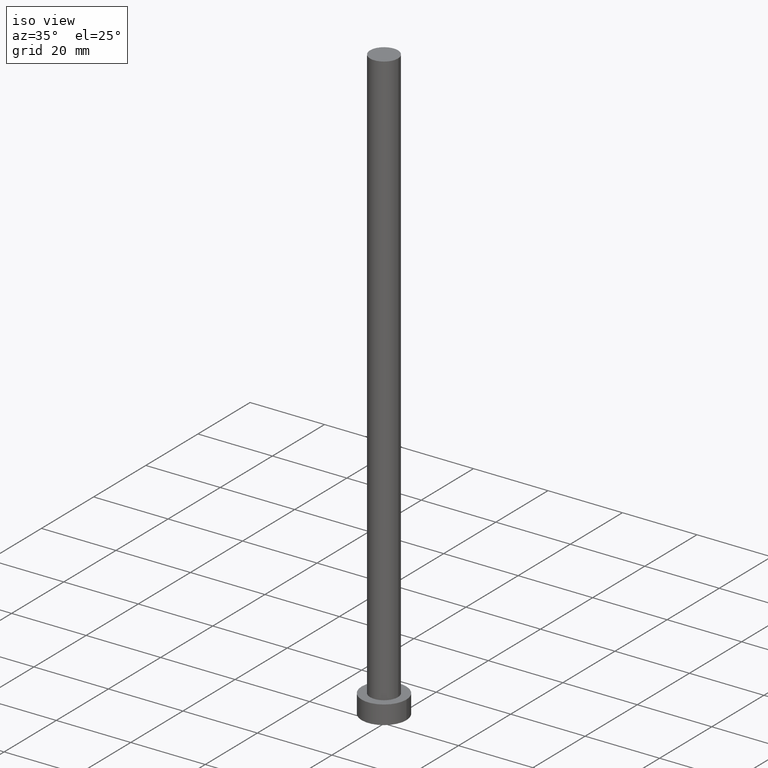
[diagram: clean part render]
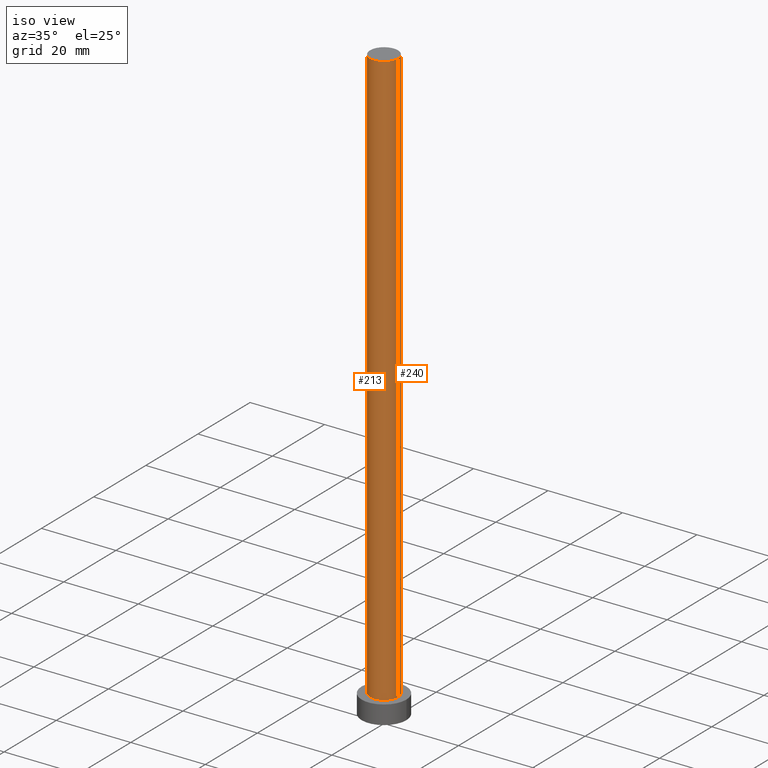
[diagram: same view with one multi-face feature highlighted, each face labeled with its STEP entity id]
A machine part, iso view. The highlighted faces form ONE feature: a constant-radius fillet chain: 2 tangent blend faces with common blend radius 3.75 mm. The faces share edges in the B-rep.
Their STEP definitions:
[1] entity #240 (Cylinder):
#21 = EDGE_CURVE ( 'NONE', #27, #91, #235, .T. ) ;
#24 = DIRECTION ( 'NONE',  ( 0.000000000000000000, 0.000000000000000000, 1.000000000000000000 ) ) ;
#25 = FACE_OUTER_BOUND ( 'NONE', #142, .T. ) ;
#27 = VERTEX_POINT ( 'NONE', #118 ) ;
#35 = AXIS2_PLACEMENT_3D ( 'NONE', #200, #24, #149 ) ;
#37 = CARTESIAN_POINT ( 'NONE',  ( 0.000000000000000000, 0.000000000000000000, 160.0000000000000000 ) ) ;
#40 = CIRCLE ( 'NONE', #35, 3.750000000000000000 ) ;
#49 = EDGE_CURVE ( 'NONE', #162, #91, #216, .T. ) ;
#51 = DIRECTION ( 'NONE',  ( -0.000000000000000000, -0.000000000000000000, -1.000000000000000000 ) ) ;
#54 = DIRECTION ( 'NONE',  ( 1.000000000000000000, 0.000000000000000000, 0.000000000000000000 ) ) ;
#55 = DIRECTION ( 'NONE',  ( -0.000000000000000000, -0.000000000000000000, -1.000000000000000000 ) ) ;
#65 = CARTESIAN_POINT ( 'NONE',  ( 3.750000000000000000, 4.592425496802573972E-16, 160.0000000000000000 ) ) ;
#67 = VECTOR ( 'NONE', #51, 1000.000000000000000 ) ;
#88 = CARTESIAN_POINT ( 'NONE',  ( -3.750000000000000000, 0.000000000000000000, 160.0000000000000000 ) ) ;
#91 = VERTEX_POINT ( 'NONE', #222 ) ;
#95 = ORIENTED_EDGE ( 'NONE', *, *, #49, .T. ) ;
#101 = ORIENTED_EDGE ( 'NONE', *, *, #228, .T. ) ;
#118 = CARTESIAN_POINT ( 'NONE',  ( -3.750000000000000000, 0.000000000000000000, 160.0000000000000000 ) ) ;
#131 = AXIS2_PLACEMENT_3D ( 'NONE', #37, #183, #245 ) ;
#134 = LINE ( 'NONE', #65, #67 ) ;
#137 = DIRECTION ( 'NONE',  ( 0.000000000000000000, 0.000000000000000000, 1.000000000000000000 ) ) ;
#142 = EDGE_LOOP ( 'NONE', ( #207, #101, #95, #184 ) ) ;
#149 = DIRECTION ( 'NONE',  ( 1.000000000000000000, 0.000000000000000000, 0.000000000000000000 ) ) ;
#161 = CYLINDRICAL_SURFACE ( 'NONE', #131, 3.750000000000000000 ) ;
#162 = VERTEX_POINT ( 'NONE', #226 ) ;
#183 = DIRECTION ( 'NONE',  ( -0.000000000000000000, -0.000000000000000000, -1.000000000000000000 ) ) ;
#184 = ORIENTED_EDGE ( 'NONE', *, *, #21, .F. ) ;
#185 = VECTOR ( 'NONE', #55, 1000.000000000000000 ) ;
#188 = CARTESIAN_POINT ( 'NONE',  ( 3.750000000000000000, 4.592425496802573972E-16, 160.0000000000000000 ) ) ;
#195 = EDGE_CURVE ( 'NONE', #220, #27, #40, .T. ) ;
#200 = CARTESIAN_POINT ( 'NONE',  ( 0.000000000000000000, 0.000000000000000000, 160.0000000000000000 ) ) ;
#207 = ORIENTED_EDGE ( 'NONE', *, *, #195, .F. ) ;
#216 = CIRCLE ( 'NONE', #244, 3.750000000000000000 ) ;
#220 = VERTEX_POINT ( 'NONE', #188 ) ;
#222 = CARTESIAN_POINT ( 'NONE',  ( -3.750000000000000000, 0.000000000000000000, 5.000000000000000000 ) ) ;
#226 = CARTESIAN_POINT ( 'NONE',  ( 3.750000000000000000, 4.592425496802573972E-16, 5.000000000000000000 ) ) ;
#228 = EDGE_CURVE ( 'NONE', #220, #162, #134, .T. ) ;
#235 = LINE ( 'NONE', #88, #185 ) ;
#238 = CARTESIAN_POINT ( 'NONE',  ( 0.000000000000000000, 0.000000000000000000, 5.000000000000000000 ) ) ;
#240 = ADVANCED_FACE ( 'NONE', ( #25 ), #161, .T. ) ;
#244 = AXIS2_PLACEMENT_3D ( 'NONE', #238, #137, #54 ) ;
#245 = DIRECTION ( 'NONE',  ( -1.000000000000000000, 0.000000000000000000, 0.000000000000000000 ) ) ;
[2] entity #213 (Cylinder):
#13 = CARTESIAN_POINT ( 'NONE',  ( 0.000000000000000000, 0.000000000000000000, 5.000000000000000000 ) ) ;
#21 = EDGE_CURVE ( 'NONE', #27, #91, #235, .T. ) ;
#27 = VERTEX_POINT ( 'NONE', #118 ) ;
#31 = DIRECTION ( 'NONE',  ( -1.000000000000000000, 0.000000000000000000, 0.000000000000000000 ) ) ;
#47 = CYLINDRICAL_SURFACE ( 'NONE', #150, 3.750000000000000000 ) ;
#48 = AXIS2_PLACEMENT_3D ( 'NONE', #13, #68, #156 ) ;
#51 = DIRECTION ( 'NONE',  ( -0.000000000000000000, -0.000000000000000000, -1.000000000000000000 ) ) ;
#55 = DIRECTION ( 'NONE',  ( -0.000000000000000000, -0.000000000000000000, -1.000000000000000000 ) ) ;
#59 = CIRCLE ( 'NONE', #139, 3.750000000000000000 ) ;
#61 = FACE_OUTER_BOUND ( 'NONE', #105, .T. ) ;
#63 = EDGE_CURVE ( 'NONE', #91, #162, #202, .T. ) ;
#65 = CARTESIAN_POINT ( 'NONE',  ( 3.750000000000000000, 4.592425496802573972E-16, 160.0000000000000000 ) ) ;
#67 = VECTOR ( 'NONE', #51, 1000.000000000000000 ) ;
#68 = DIRECTION ( 'NONE',  ( 0.000000000000000000, 0.000000000000000000, 1.000000000000000000 ) ) ;
#75 = ORIENTED_EDGE ( 'NONE', *, *, #253, .F. ) ;
#88 = CARTESIAN_POINT ( 'NONE',  ( -3.750000000000000000, 0.000000000000000000, 160.0000000000000000 ) ) ;
#91 = VERTEX_POINT ( 'NONE', #222 ) ;
#105 = EDGE_LOOP ( 'NONE', ( #128, #75, #243, #218 ) ) ;
#118 = CARTESIAN_POINT ( 'NONE',  ( -3.750000000000000000, 0.000000000000000000, 160.0000000000000000 ) ) ;
#128 = ORIENTED_EDGE ( 'NONE', *, *, #228, .F. ) ;
#134 = LINE ( 'NONE', #65, #67 ) ;
#139 = AXIS2_PLACEMENT_3D ( 'NONE', #246, #180, #172 ) ;
#150 = AXIS2_PLACEMENT_3D ( 'NONE', #189, #251, #31 ) ;
#156 = DIRECTION ( 'NONE',  ( 1.000000000000000000, 0.000000000000000000, 0.000000000000000000 ) ) ;
#162 = VERTEX_POINT ( 'NONE', #226 ) ;
#172 = DIRECTION ( 'NONE',  ( 1.000000000000000000, 0.000000000000000000, 0.000000000000000000 ) ) ;
#180 = DIRECTION ( 'NONE',  ( 0.000000000000000000, 0.000000000000000000, 1.000000000000000000 ) ) ;
#185 = VECTOR ( 'NONE', #55, 1000.000000000000000 ) ;
#188 = CARTESIAN_POINT ( 'NONE',  ( 3.750000000000000000, 4.592425496802573972E-16, 160.0000000000000000 ) ) ;
#189 = CARTESIAN_POINT ( 'NONE',  ( 0.000000000000000000, 0.000000000000000000, 160.0000000000000000 ) ) ;
#202 = CIRCLE ( 'NONE', #48, 3.750000000000000000 ) ;
#213 = ADVANCED_FACE ( 'NONE', ( #61 ), #47, .T. ) ;
#218 = ORIENTED_EDGE ( 'NONE', *, *, #63, .T. ) ;
#220 = VERTEX_POINT ( 'NONE', #188 ) ;
#222 = CARTESIAN_POINT ( 'NONE',  ( -3.750000000000000000, 0.000000000000000000, 5.000000000000000000 ) ) ;
#226 = CARTESIAN_POINT ( 'NONE',  ( 3.750000000000000000, 4.592425496802573972E-16, 5.000000000000000000 ) ) ;
#228 = EDGE_CURVE ( 'NONE', #220, #162, #134, .T. ) ;
#235 = LINE ( 'NONE', #88, #185 ) ;
#243 = ORIENTED_EDGE ( 'NONE', *, *, #21, .T. ) ;
#246 = CARTESIAN_POINT ( 'NONE',  ( 0.000000000000000000, 0.000000000000000000, 160.0000000000000000 ) ) ;
#251 = DIRECTION ( 'NONE',  ( -0.000000000000000000, -0.000000000000000000, -1.000000000000000000 ) ) ;
#253 = EDGE_CURVE ( 'NONE', #27, #220, #59, .T. ) ;